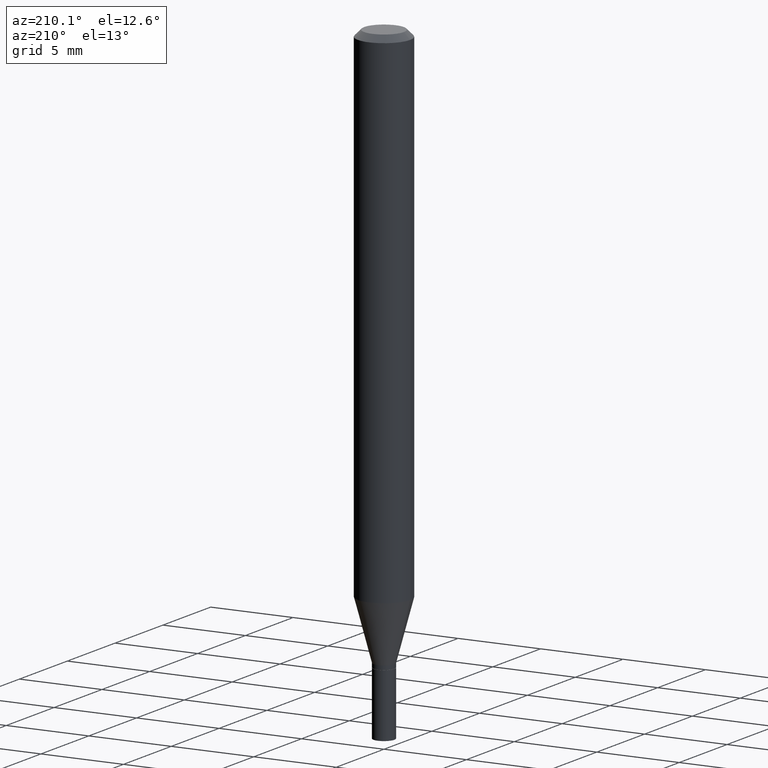
[diagram: clean part render]
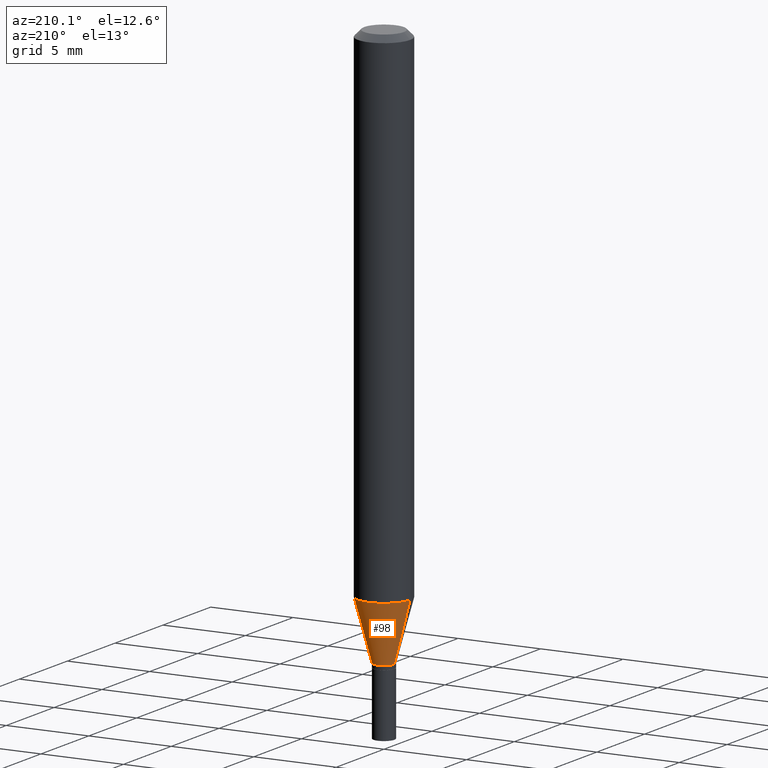
[diagram: same view with one face highlighted and labeled with its STEP entity id]
A machine part, auxiliary view. The second image highlights one B-rep face of the part: STEP entity #98.
In plain terms, the highlighted conical surface has half-angle 15 deg.
Its self-contained STEP definition (entity closure, byte-faithful):
#6 = VECTOR ( 'NONE', #61, 39.37007874015748143 ) ;
#8 = CARTESIAN_POINT ( 'NONE',  ( -0.02499999999999992506, -4.500949310109791320E-15, -1.340000000000000080 ) ) ;
#9 = DIRECTION ( 'NONE',  ( 1.000000000000000000, -6.982962677686276177E-15, 0.000000000000000000 ) ) ;
#48 = VECTOR ( 'NONE', #116, 39.37007874015748143 ) ;
#58 = LINE ( 'NONE', #380, #6 ) ;
#61 = DIRECTION ( 'NONE',  ( 0.2588190451025211281, 1.565188264969623940E-15, 0.9659258262890682012 ) ) ;
#98 = ADVANCED_FACE ( 'NONE', ( #289 ), #448, .T. ) ;
#112 = CARTESIAN_POINT ( 'NONE',  ( 3.276928200288083533E-29, -4.678584994049815735E-15, -1.340000000000000080 ) ) ;
#116 = DIRECTION ( 'NONE',  ( -0.2588190451025211281, 5.211531920934548675E-15, 0.9659258262890682012 ) ) ;
#132 = DIRECTION ( 'NONE',  ( 1.000000000000000000, -6.982962677686270655E-15, 0.000000000000000000 ) ) ;
#134 = DIRECTION ( 'NONE',  ( -2.445468806185136597E-29, 3.491481338843145583E-15, 1.000000000000000000 ) ) ;
#135 = EDGE_CURVE ( 'NONE', #216, #276, #58, .T. ) ;
#139 = ORIENTED_EDGE ( 'NONE', *, *, #135, .F. ) ;
#142 = ORIENTED_EDGE ( 'NONE', *, *, #266, .T. ) ;
#161 = AXIS2_PLACEMENT_3D ( 'NONE', #406, #310, #181 ) ;
#181 = DIRECTION ( 'NONE',  ( 1.000000000000000000, -6.982962677686276177E-15, 0.000000000000000000 ) ) ;
#182 = EDGE_CURVE ( 'NONE', #276, #459, #199, .T. ) ;
#186 = DIRECTION ( 'NONE',  ( -2.445468806185136597E-29, 3.491481338843145583E-15, 1.000000000000000000 ) ) ;
#199 = CIRCLE ( 'NONE', #243, 0.06250000000000000000 ) ;
#208 = CARTESIAN_POINT ( 'NONE',  ( 0.02499999999999992506, -4.853159060991972403E-15, -1.340000000000000080 ) ) ;
#216 = VERTEX_POINT ( 'NONE', #208 ) ;
#233 = AXIS2_PLACEMENT_3D ( 'NONE', #112, #186, #9 ) ;
#243 = AXIS2_PLACEMENT_3D ( 'NONE', #455, #134, #132 ) ;
#260 = ORIENTED_EDGE ( 'NONE', *, *, #182, .F. ) ;
#266 = EDGE_CURVE ( 'NONE', #424, #459, #316, .T. ) ;
#273 = EDGE_LOOP ( 'NONE', ( #456, #142, #260, #139 ) ) ;
#276 = VERTEX_POINT ( 'NONE', #437 ) ;
#289 = FACE_OUTER_BOUND ( 'NONE', #273, .T. ) ;
#310 = DIRECTION ( 'NONE',  ( -2.445468806185136597E-29, 3.491481338843145583E-15, 1.000000000000000000 ) ) ;
#316 = LINE ( 'NONE', #8, #48 ) ;
#335 = EDGE_CURVE ( 'NONE', #216, #424, #374, .T. ) ;
#363 = CARTESIAN_POINT ( 'NONE',  ( -0.02499999999999992506, -4.123402814337749095E-15, -1.340000000000000080 ) ) ;
#374 = CIRCLE ( 'NONE', #233, 0.02499999999999992506 ) ;
#380 = CARTESIAN_POINT ( 'NONE',  ( 0.02499999999999992506, -4.853159060991972403E-15, -1.340000000000000080 ) ) ;
#406 = CARTESIAN_POINT ( 'NONE',  ( 3.276928200288083533E-29, -4.678584994049815735E-15, -1.340000000000000080 ) ) ;
#424 = VERTEX_POINT ( 'NONE', #363 ) ;
#437 = CARTESIAN_POINT ( 'NONE',  ( 0.06250000000000000000, -4.626380695771161156E-15, -1.200048094716167135 ) ) ;
#442 = CARTESIAN_POINT ( 'NONE',  ( -0.06250000000000000000, -3.745856318565706871E-15, -1.200048094716167135 ) ) ;
#448 = CONICAL_SURFACE ( 'NONE', #161, 0.02499999999999992506, 0.2617993877991497964 ) ;
#455 = CARTESIAN_POINT ( 'NONE',  ( 2.934680181550293043E-29, -4.189945528415769487E-15, -1.200048094716167135 ) ) ;
#456 = ORIENTED_EDGE ( 'NONE', *, *, #335, .T. ) ;
#459 = VERTEX_POINT ( 'NONE', #442 ) ;